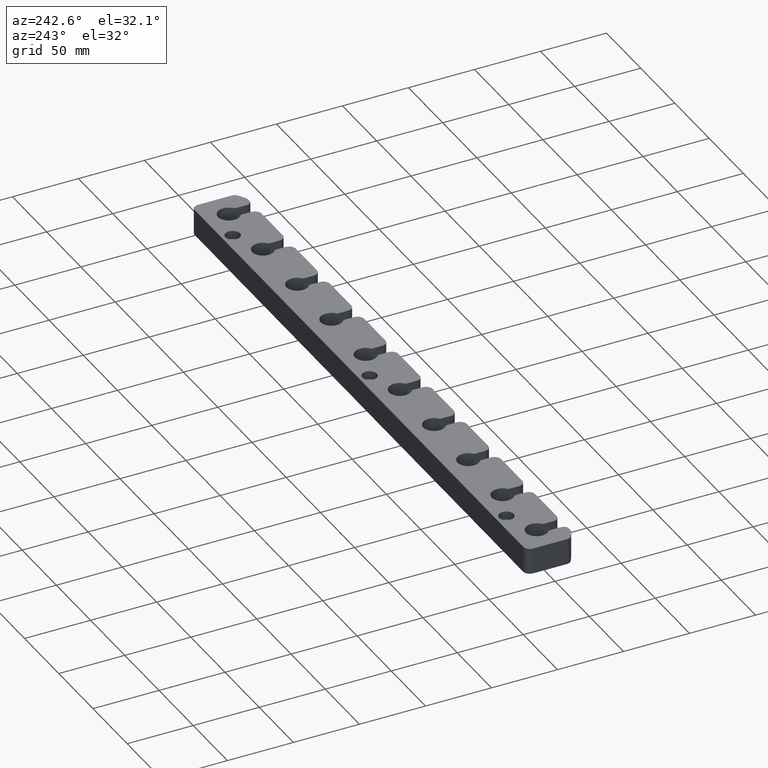
[diagram: clean part render]
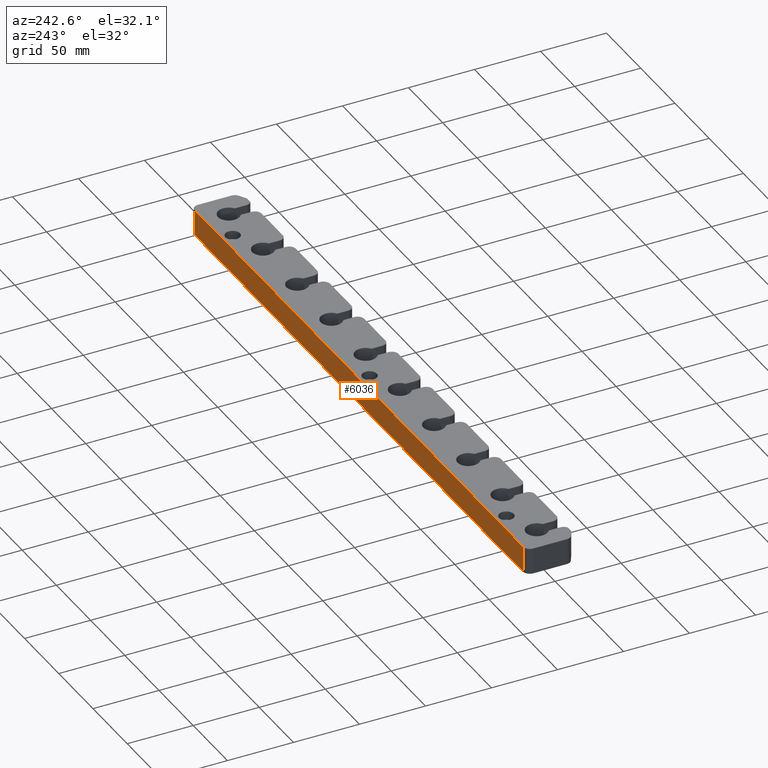
[diagram: same view with one face highlighted and labeled with its STEP entity id]
A machine part, auxiliary view. The second image highlights one B-rep face of the part: STEP entity #6036.
In plain terms, the highlighted planar face has unit normal (0, 1, 0).
Its self-contained STEP definition (entity closure, byte-faithful):
#101 = EDGE_LOOP ( 'NONE', ( #2563, #6610, #956, #4922 ) ) ;
#223 = LINE ( 'NONE', #6240, #307 ) ;
#307 = VECTOR ( 'NONE', #4139, 1000.000000000000000 ) ;
#590 = VERTEX_POINT ( 'NONE', #2809 ) ;
#838 = AXIS2_PLACEMENT_3D ( 'NONE', #5587, #5095, #1388 ) ;
#931 = CARTESIAN_POINT ( 'NONE',  ( -240.0000000000000000, 19.00000000000000000, 19.82679491924317361 ) ) ;
#956 = ORIENTED_EDGE ( 'NONE', *, *, #1399, .T. ) ;
#1388 = DIRECTION ( 'NONE',  ( 0.000000000000000000, -0.000000000000000000, 1.000000000000000000 ) ) ;
#1399 = EDGE_CURVE ( 'NONE', #590, #6933, #2422, .T. ) ;
#1961 = CARTESIAN_POINT ( 'NONE',  ( -245.0000000000000000, 19.00000000000000000, 0.1732050807568760731 ) ) ;
#2338 = VERTEX_POINT ( 'NONE', #4435 ) ;
#2422 = LINE ( 'NONE', #6234, #5285 ) ;
#2484 = DIRECTION ( 'NONE',  ( -1.000000000000000000, 0.000000000000000000, 0.000000000000000000 ) ) ;
#2563 = ORIENTED_EDGE ( 'NONE', *, *, #4982, .T. ) ;
#2809 = CARTESIAN_POINT ( 'NONE',  ( -240.0000000000000000, 19.00000000000000000, 0.1732050807568760731 ) ) ;
#2994 = PLANE ( 'NONE',  #838 ) ;
#3352 = EDGE_CURVE ( 'NONE', #6135, #590, #4149, .T. ) ;
#3507 = CARTESIAN_POINT ( 'NONE',  ( 240.0000000000000000, 19.00000000000000000, 0.1732050807568760453 ) ) ;
#3547 = VECTOR ( 'NONE', #2484, 1000.000000000000000 ) ;
#3816 = DIRECTION ( 'NONE',  ( 1.000000000000000000, 0.000000000000000000, 0.000000000000000000 ) ) ;
#3926 = FACE_OUTER_BOUND ( 'NONE', #101, .T. ) ;
#4139 = DIRECTION ( 'NONE',  ( 0.000000000000000000, 0.000000000000000000, -1.000000000000000000 ) ) ;
#4149 = LINE ( 'NONE', #1961, #3547 ) ;
#4213 = CARTESIAN_POINT ( 'NONE',  ( 240.0000000000000000, 19.00000000000000000, 19.82679491924317361 ) ) ;
#4435 = CARTESIAN_POINT ( 'NONE',  ( 240.0000000000000000, 19.00000000000000000, 19.82679491924317361 ) ) ;
#4922 = ORIENTED_EDGE ( 'NONE', *, *, #5112, .T. ) ;
#4982 = EDGE_CURVE ( 'NONE', #2338, #6135, #223, .T. ) ;
#5039 = VECTOR ( 'NONE', #3816, 1000.000000000000000 ) ;
#5095 = DIRECTION ( 'NONE',  ( 0.000000000000000000, 1.000000000000000000, 0.000000000000000000 ) ) ;
#5112 = EDGE_CURVE ( 'NONE', #6933, #2338, #5376, .T. ) ;
#5285 = VECTOR ( 'NONE', #6280, 1000.000000000000000 ) ;
#5376 = LINE ( 'NONE', #4213, #5039 ) ;
#5587 = CARTESIAN_POINT ( 'NONE',  ( -245.0000000000000000, 19.00000000000000000, 20.00000000000000000 ) ) ;
#6036 = ADVANCED_FACE ( 'NONE', ( #3926 ), #2994, .T. ) ;
#6135 = VERTEX_POINT ( 'NONE', #3507 ) ;
#6234 = CARTESIAN_POINT ( 'NONE',  ( -240.0000000000000000, 19.00000000000000000, 20.00000000000000000 ) ) ;
#6240 = CARTESIAN_POINT ( 'NONE',  ( 240.0000000000000000, 19.00000000000000000, 0.000000000000000000 ) ) ;
#6280 = DIRECTION ( 'NONE',  ( -0.000000000000000000, -0.000000000000000000, 1.000000000000000000 ) ) ;
#6610 = ORIENTED_EDGE ( 'NONE', *, *, #3352, .T. ) ;
#6933 = VERTEX_POINT ( 'NONE', #931 ) ;